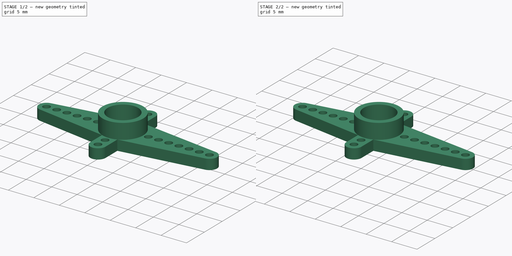
[diagram: build sequence overview — one tinted view per stage of 2, left to right]
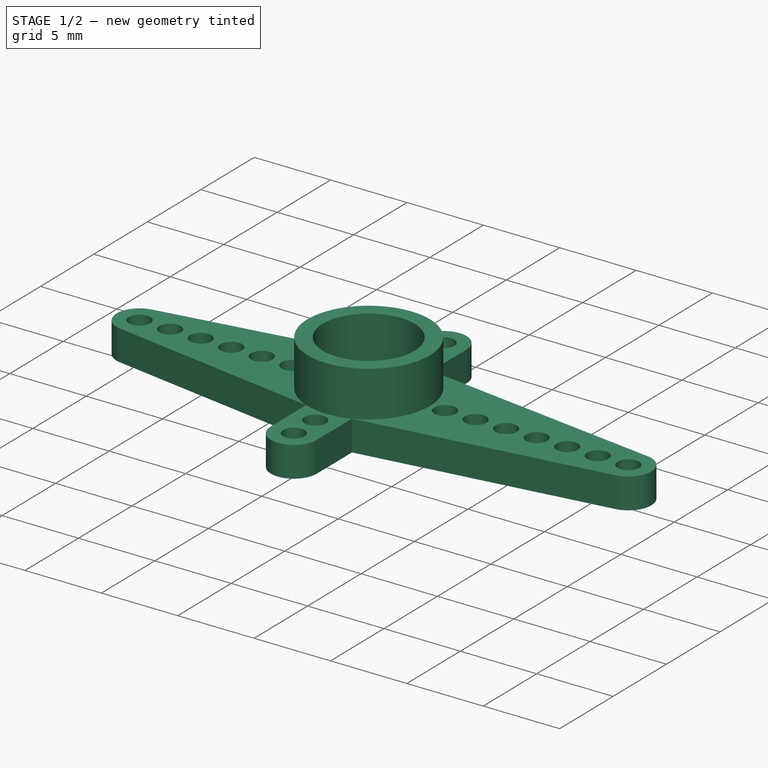
[diagram: stage 1 of 2 — iso view after this stage's code; geometry added in this stage tinted green]
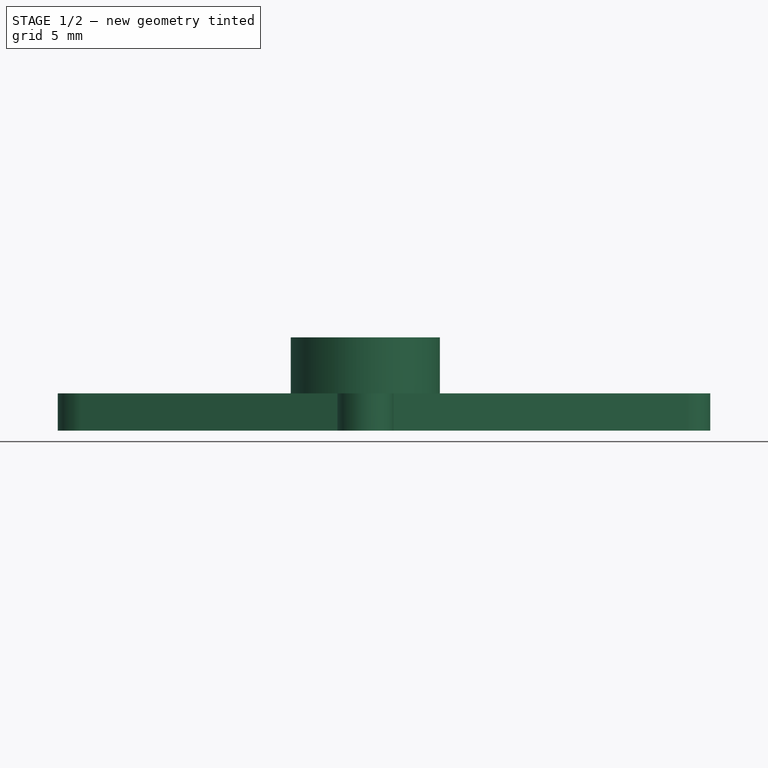
[diagram: stage 1 of 2 — front view after this stage's code; geometry added in this stage tinted green]
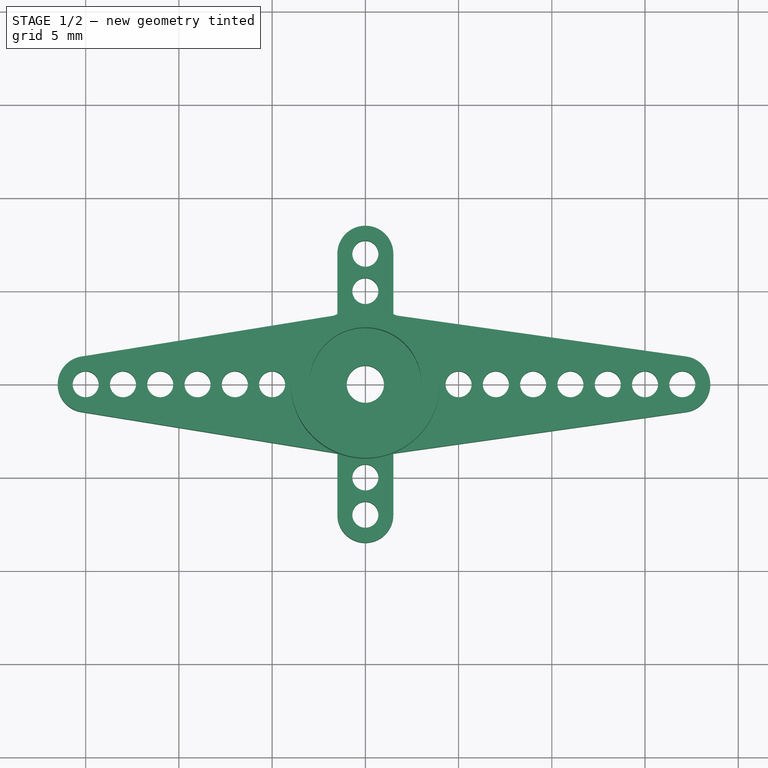
[diagram: stage 1 of 2 — top view after this stage's code; geometry added in this stage tinted green]
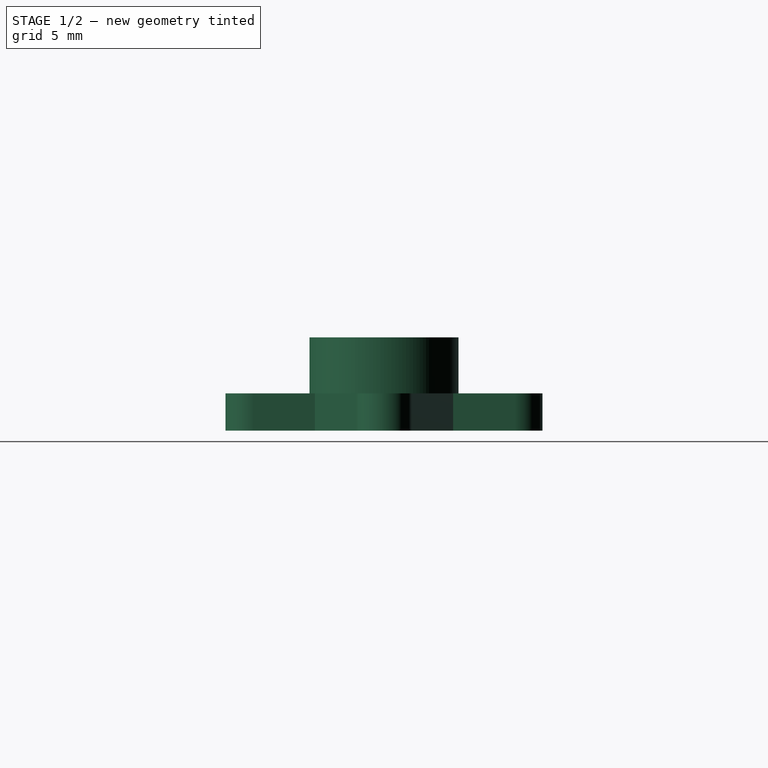
[diagram: stage 1 of 2 — right view after this stage's code; geometry added in this stage tinted green]
FCSTD DOCUMENT  (FreeCAD 0.16R5354 (Git))
Label: SG90-4-arms-horn
License: CreativeCommons Attribution-ShareAlike
LicenseURL: http://creativecommons.org/licenses/by-sa/4.0/
objects: Sketcher::SketchObject×3, PartDesign::Pad×2, Part::Fuse×1, PartDesign::Pocket×1, App::DocumentObjectGroup×1, Part::Feature×1
note: 11 computed .brp shape members not serialized (recipe doc carries the construction recipe); baked Part::Feature solids carry a one-line shape summary decoded from their .brp

FEATURE [Sketcher::SketchObject] Sketch001
  sketch-geometry (31):
    g0: LineSegment StartX=-1.5 StartY=3.7081 StartZ=0 EndX=-1.5 EndY=7 EndZ=0
    g1: LineSegment StartX=1.5 StartY=7 StartZ=0 EndX=1.5 EndY=3.7081 EndZ=0
    g2: LineSegment StartX=1.5 StartY=3.7081 StartZ=0 EndX=17.2101 EndY=1.48521 EndZ=0
    g3: LineSegment StartX=17.2101 StartY=-1.48521 StartZ=0 EndX=1.5 EndY=-3.7081 EndZ=0
    g4: LineSegment StartX=1.5 StartY=-3.7081 StartZ=0 EndX=1.5 EndY=-7 EndZ=0
    g5: LineSegment StartX=-1.5 StartY=-7 StartZ=0 EndX=-1.5 EndY=-3.7081 EndZ=0
    g6: LineSegment StartX=-1.5 StartY=-3.7081 StartZ=0 EndX=-15.24 EndY=-1.48067 EndZ=0
    g7: LineSegment StartX=-15.24 StartY=1.48067 StartZ=0 EndX=-1.5 EndY=3.7081 EndZ=0
    g8: ArcOfCircle CenterX=0 CenterY=7 CenterZ=0 NormalX=0 NormalY=0 NormalZ=1 Radius=1.5 StartAngle=0 EndAngle=3.14159
    g9: ArcOfCircle CenterX=17 CenterY=0 CenterZ=0 NormalX=0 NormalY=0 NormalZ=1 Radius=1.5 StartAngle=4.85295 EndAngle=7.71342
    g10: ArcOfCircle CenterX=0 CenterY=-7 CenterZ=0 NormalX=0 NormalY=0 NormalZ=1 Radius=1.5 StartAngle=3.14159 EndAngle=6.28319
    g11: ArcOfCircle CenterX=-15 CenterY=0 CenterZ=0 NormalX=0 NormalY=0 NormalZ=1 Radius=1.5 StartAngle=1.73151 EndAngle=4.55167
    g12: Circle [constr] CenterX=0 CenterY=0 CenterZ=0 NormalX=0 NormalY=0 NormalZ=1 Radius=4
    g13: Circle CenterX=0 CenterY=0 CenterZ=0 NormalX=0 NormalY=0 NormalZ=1 Radius=1
    g14: Circle CenterX=-15 CenterY=0 CenterZ=0 NormalX=0 NormalY=0 NormalZ=1 Radius=0.7
    g15: Circle CenterX=-13 CenterY=0 CenterZ=0 NormalX=0 NormalY=0 NormalZ=1 Radius=0.7
    g16: Circle CenterX=-11 CenterY=0 CenterZ=0 NormalX=0 NormalY=0 NormalZ=1 Radius=0.7
    g17: Circle CenterX=-9 CenterY=0 CenterZ=0 NormalX=0 NormalY=0 NormalZ=1 Radius=0.7
    g18: Circle CenterX=-7 CenterY=0 CenterZ=0 NormalX=0 NormalY=0 NormalZ=1 Radius=0.7
    g19: Circle CenterX=-5 CenterY=0 CenterZ=0 NormalX=0 NormalY=0 NormalZ=1 Radius=0.7
    g20: Circle CenterX=5 CenterY=0 CenterZ=0 NormalX=0 NormalY=0 NormalZ=1 Radius=0.7
    g21: Circle CenterX=7 CenterY=0 CenterZ=0 NormalX=0 NormalY=0 NormalZ=1 Radius=0.7
    g22: Circle CenterX=9 CenterY=0 CenterZ=0 NormalX=0 NormalY=0 NormalZ=1 Radius=0.7
    g23: Circle CenterX=11 CenterY=0 CenterZ=0 NormalX=0 NormalY=0 NormalZ=1 Radius=0.7
    g24: Circle CenterX=13 CenterY=0 CenterZ=0 NormalX=0 NormalY=0 NormalZ=1 Radius=0.7
    g25: Circle CenterX=15 CenterY=0 CenterZ=0 NormalX=0 NormalY=0 NormalZ=1 Radius=0.7
    g26: Circle CenterX=17 CenterY=0 CenterZ=0 NormalX=0 NormalY=0 NormalZ=1 Radius=0.7
    g27: Circle CenterX=0 CenterY=5 CenterZ=0 NormalX=0 NormalY=0 NormalZ=1 Radius=0.7
    g28: Circle CenterX=0 CenterY=7 CenterZ=0 NormalX=0 NormalY=0 NormalZ=1 Radius=0.7
    g29: Circle CenterX=0 CenterY=-7 CenterZ=0 NormalX=0 NormalY=0 NormalZ=1 Radius=0.7
    g30: Circle CenterX=0 CenterY=-5 CenterZ=0 NormalX=0 NormalY=0 NormalZ=1 Radius=0.7
  constraints (82):
    c: Coincident(g1,g2)
    c: Coincident(g7,g0)
    c: Tangent(g0,g8) = 1.5708
    c: Tangent(g1,g8) = 1.5708
    c: Tangent(g2,g9) = 1.5708
    c: Tangent(g3,g9) = 1.5708
    c: Tangent(g4,g10) = 1.5708
    c: Tangent(g5,g10) = 1.5708
    c: Tangent(g6,g11) = 1.5708
    c: Tangent(g7,g11) = 1.5708
    c: PointOnObject(g11,g-1)
    c: Symmetric(g8,g10,g-1)
    c: PointOnObject(g8,g-2)
    c: Equal(g11,g8)
    c: Equal(g8,g9)
    c: Equal(g9,g10)
    c: Vertical(g0)
    c: Vertical(g1)
    c: Vertical(g4)
    c: Vertical(g5)
    c: DistanceX(g11,g9) = 32
    c: Radius(g8) = 1.5
    c: DistanceY(g8,g10) = -14
    c: Coincident(g3,g4)
    c: Coincident(g6,g5)
    c: Coincident(g12,g-1)
    c: Radius(g12) = 4
    c: PointOnObject(g0,g12)
    c: PointOnObject(g3,g12)
    c: PointOnObject(g5,g12)
    c: PointOnObject(g1,g12)
    c: Radius(g13) = 1
    c: Coincident(g13,g-1)
    c: DistanceX(g-1,g11) = -15
    c: PointOnObject(g9,g-1)
    c: Coincident(g14,g11)
    c: PointOnObject(g15,g-1)
    c: PointOnObject(g16,g-1)
    c: PointOnObject(g17,g-1)
    c: PointOnObject(g18,g-1)
    c: PointOnObject(g20,g-1)
    c: PointOnObject(g22,g-1)
    c: PointOnObject(g23,g-1)
    c: PointOnObject(g24,g-1)
    c: PointOnObject(g25,g-1)
    c: Coincident(g26,g9)
    c: Radius(g14) = 0.7
    c: PointOnObject(g27,g-2)
    c: Coincident(g28,g8)
    c: Coincident(g29,g10)
    c: PointOnObject(g30,g-2)
    c: Equal(g14,g15)
    c: Equal(g15,g16)
    c: Equal(g16,g17)
    c: Equal(g17,g18)
    c: Equal(g18,g19)
    c: Equal(g19,g20)
    c: Equal(g20,g21)
    c: Equal(g21,g22)
    c: Equal(g22,g23)
    c: Equal(g23,g24)
    c: Equal(g24,g25)
    c: Equal(g25,g28)
    c: Equal(g28,g27)
    c: Equal(g27,g30)
    c: Equal(g30,g29)
    c: DistanceX(g11,g15) = 2
    c: DistanceX(g15,g16) = 2
    c: DistanceX(g17,g16) = -2
    c: DistanceX(g18,g17) = -2
    c: DistanceX(g19,g18) = -2
    c: DistanceX(g9,g25) = -2
    c: DistanceX(g25,g24) = -2
    c: DistanceX(g24,g23) = -2
    c: DistanceX(g23,g22) = -2
    c: DistanceX(g22,g21) = -2
    c: DistanceX(g21,g20) = -2
    c: DistanceY(g30,g10) = -2
    c: DistanceY(g8,g27) = -2
    c: PointOnObject(g19,g-1)
    c: PointOnObject(g21,g-1)
    c: Equal(g15,g26)
FEATURE [PartDesign::Pad] Pad
  Length = 2
  Length2 = 100
  Sketch = -> Sketch001
  Type = 0
FEATURE [Sketcher::SketchObject] Sketch002
  sketch-geometry (2):
    g0: Circle CenterX=0 CenterY=0 CenterZ=0 NormalX=0 NormalY=0 NormalZ=1 Radius=3
    g1: Circle CenterX=0 CenterY=0 CenterZ=0 NormalX=0 NormalY=0 NormalZ=1 Radius=4
  constraints (4):
    c: Coincident(g0,g-1)
    c: Radius(g0) = 3
    c: Radius(g1) = 4
    c: Coincident(g1,g-1)
FEATURE [PartDesign::Pad] Pad001
  Length = 5
  Length2 = 100
  Sketch = -> Sketch002
  Type = 0
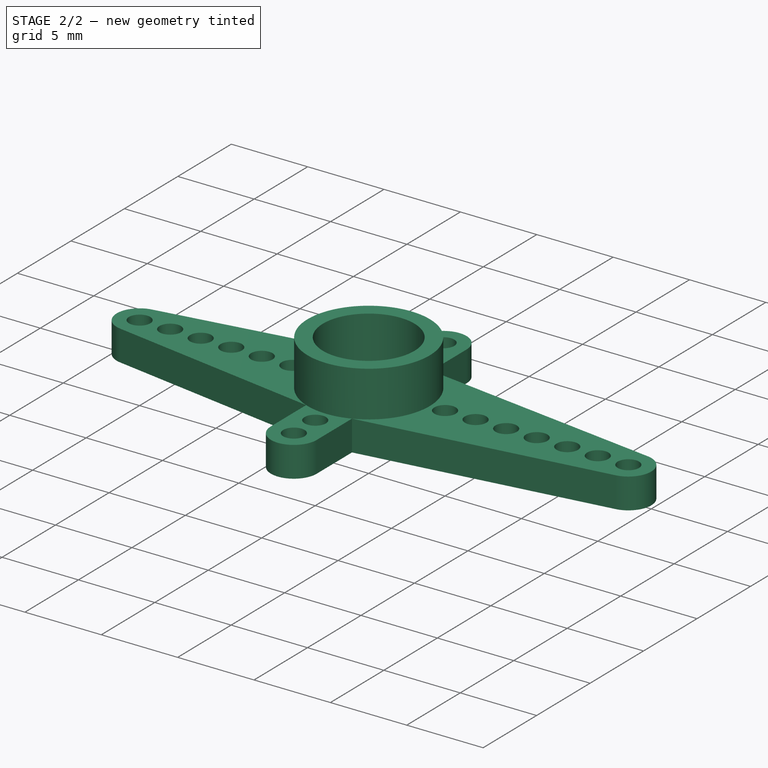
[diagram: stage 2 of 2 — iso view after this stage's code; geometry added in this stage tinted green]
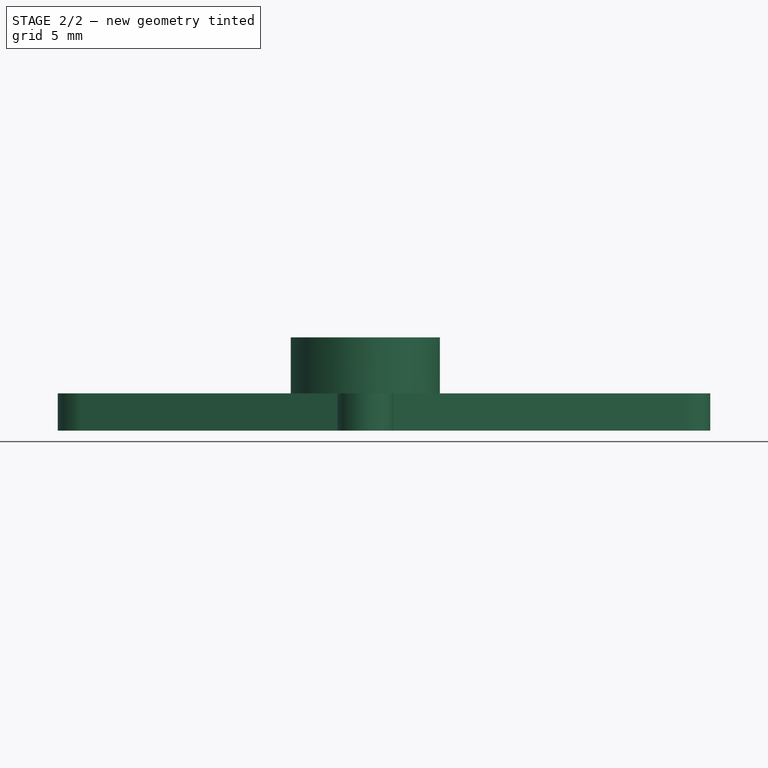
[diagram: stage 2 of 2 — front view after this stage's code; geometry added in this stage tinted green]
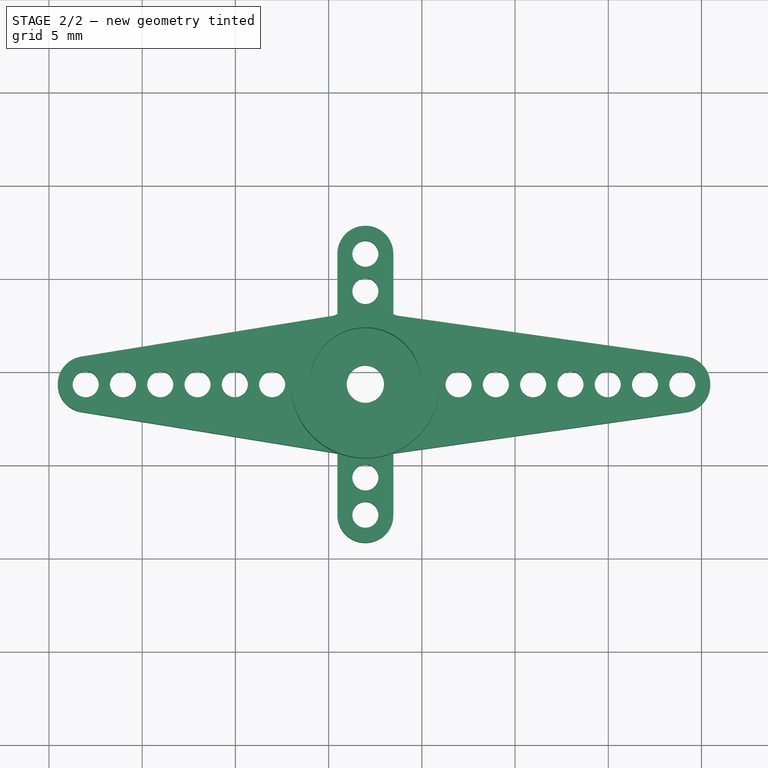
[diagram: stage 2 of 2 — top view after this stage's code; geometry added in this stage tinted green]
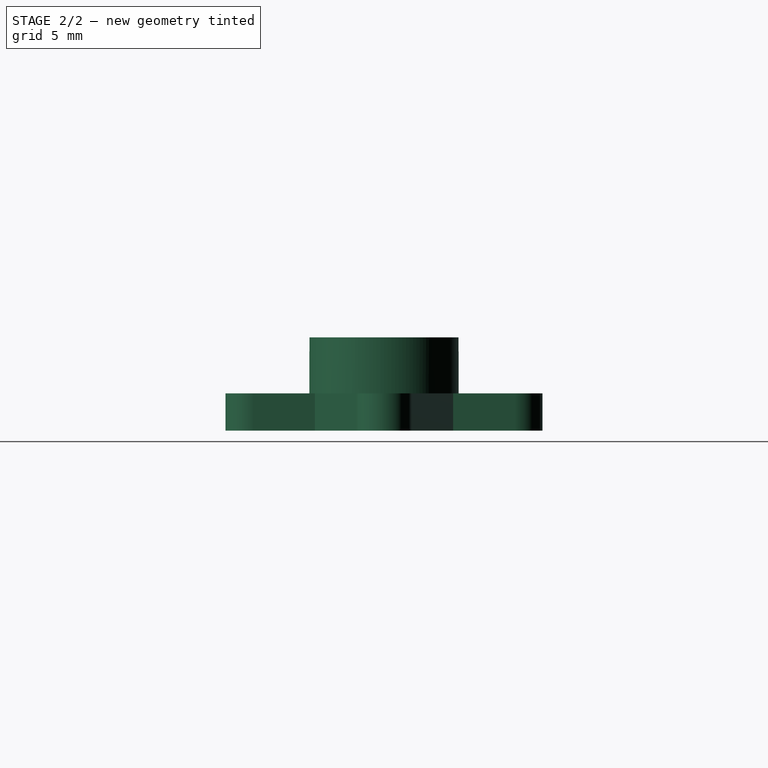
[diagram: stage 2 of 2 — right view after this stage's code; geometry added in this stage tinted green]
FEATURE [Part::Fuse] Fusion007
  Base = -> Pad
  Placement = pos=(26.9697,9.3362,25.6722) rot=(0,0,1;0rad)
  Tool = -> Pad001
FEATURE [Sketcher::SketchObject] Sketch003
  Placement = pos=(-0.0409265,16.0892,27.9) rot=(0.298247,0.954489,0;3.14159rad)
  Support = -> Fusion007 [Face39]
  sketch-geometry (1):
    g0: Circle CenterX=0 CenterY=0 CenterZ=0 NormalX=0 NormalY=0 NormalZ=1 Radius=2.5
  constraints (2):
    c: Coincident(g0,g-1)
    c: Radius(g0) = 2.5
FEATURE [PartDesign::Pocket] Pocket001  label="Pieza_completa"
  Length = 1
  Placement = pos=(26.9697,9.3362,25.6722) rot=(0,0,1;0rad)
  Sketch = -> Sketch003
  Type = 0
FEATURE [App::DocumentObjectGroup] Grupo  label="Horn x 4"
  Group = -> [Fusion007,Pocket001]
FEATURE [Part::Feature] Pocket001001  label="Final-4-arms-horn"
  Placement = pos=(26.9697,9.3362,25.6722) rot=(0,0,1;0rad)
  shape: bbox 35 x 17 x 5 mm, 41 faces (baked)
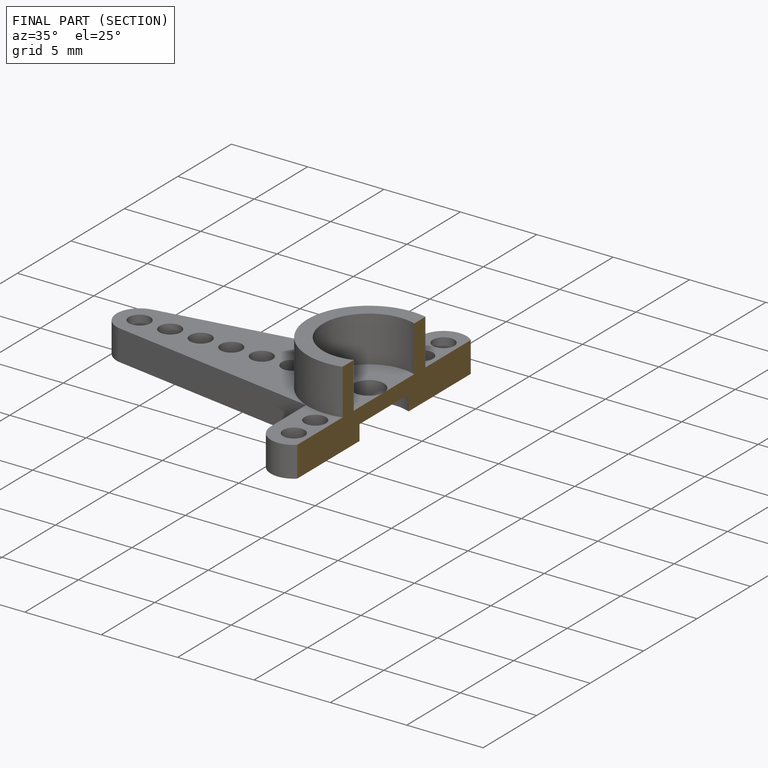
[diagram: finished part — half-section view (interior)]
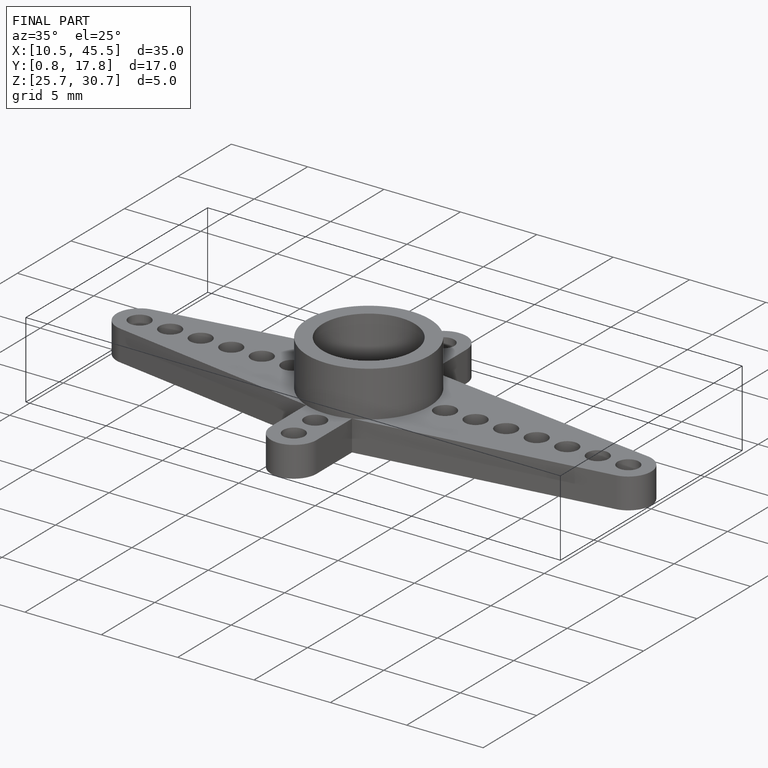
[diagram: finished part — iso view with bounding-box wireframe]
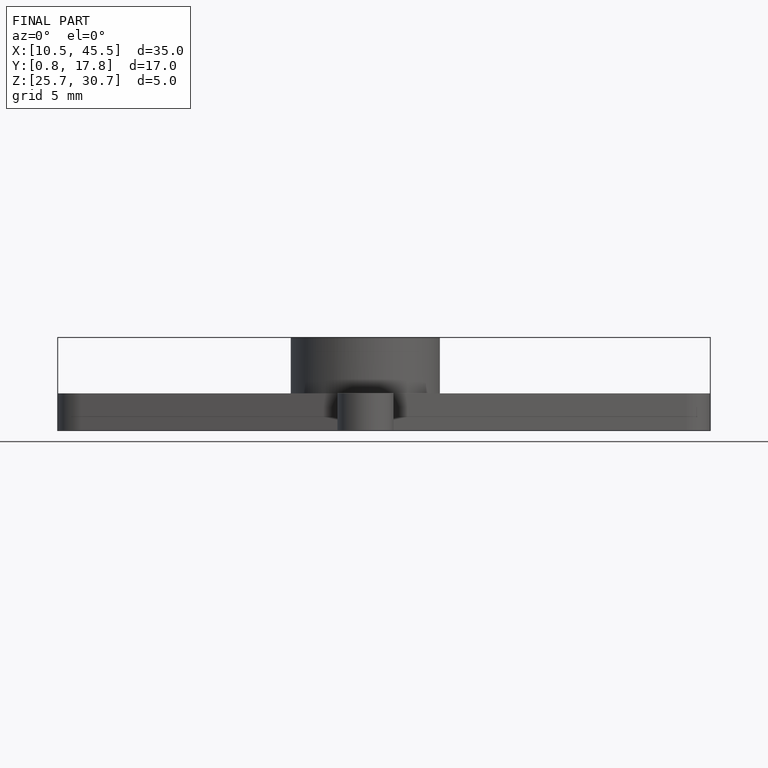
[diagram: finished part — front view with bounding-box wireframe]
